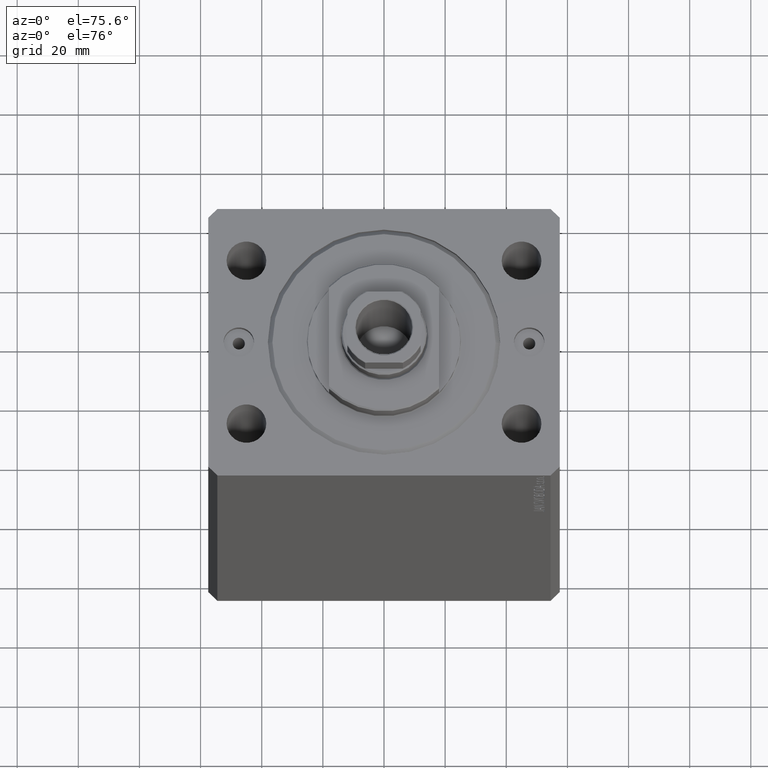
[diagram: clean part render]
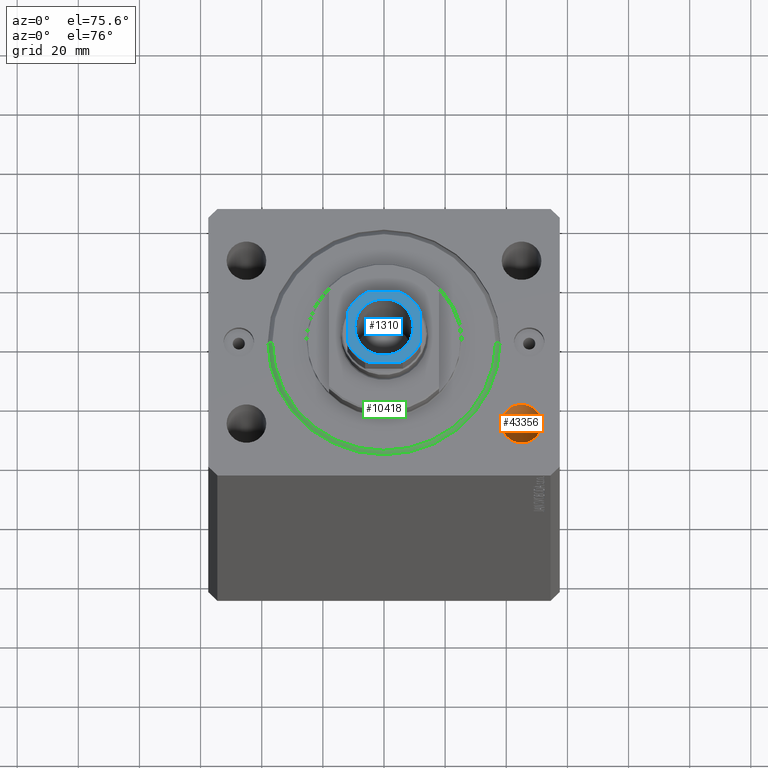
[diagram: same view with three faces highlighted in distinct colors, each labeled with its STEP entity id]
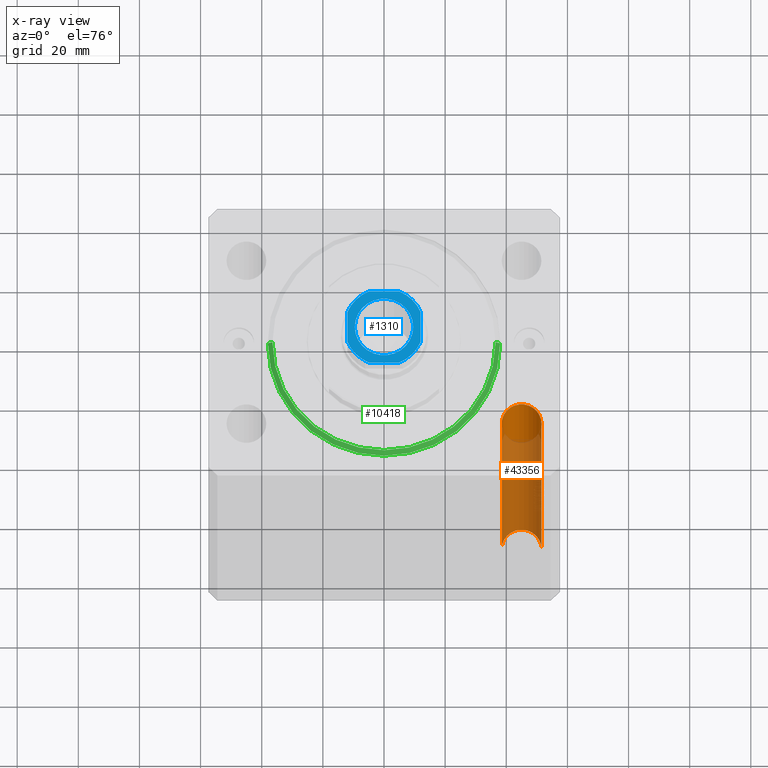
[diagram: x-ray of the same camera — body ghosted, the three highlighted faces saturated]
A machine part, auxiliary view with three faces highlighted in distinct colors.
The next image is the same camera in x-ray (body ghosted, the three faces saturated) — at least one of them is partly hidden behind the body in this view.
Their STEP definitions:

[orange] entity #43356 — the highlighted cylindrical surface (edge-blend (fillet) strip) has radius 6.5 mm, axis along (0, 0, 1).
#862 = DIRECTION ( 'NONE',  ( 0.000000000000000000, 0.000000000000000000, 1.000000000000000000 ) ) ;
#2101 = CIRCLE ( 'NONE', #24185, 6.499999999999999112 ) ;
#3193 = CARTESIAN_POINT ( 'NONE',  ( 51.49999999999998579, -27.50000000000000355, -165.0000000000000000 ) ) ;
#5666 = VECTOR ( 'NONE', #37094, 1000.000000000000000 ) ;
#6110 = DIRECTION ( 'NONE',  ( -0.000000000000000000, -0.000000000000000000, 1.000000000000000000 ) ) ;
#7780 = CARTESIAN_POINT ( 'NONE',  ( 44.99999999999998579, -27.50000000000000355, 0.000000000000000000 ) ) ;
#10852 = CARTESIAN_POINT ( 'NONE',  ( 44.99999999999998579, -27.50000000000000355, -183.3847763108502420 ) ) ;
#10876 = ORIENTED_EDGE ( 'NONE', *, *, #30986, .F. ) ;
#13841 = CARTESIAN_POINT ( 'NONE',  ( 38.49999999999998579, -27.50000000000000355, 0.000000000000000000 ) ) ;
#16469 = VERTEX_POINT ( 'NONE', #41620 ) ;
#17053 = CYLINDRICAL_SURFACE ( 'NONE', #46837, 6.499999999999999112 ) ;
#19086 = EDGE_CURVE ( 'NONE', #16469, #31495, #2101, .T. ) ;
#21027 = LINE ( 'NONE', #39665, #27450 ) ;
#21050 = DIRECTION ( 'NONE',  ( -0.000000000000000000, -0.000000000000000000, -1.000000000000000000 ) ) ;
#21497 = DIRECTION ( 'NONE',  ( -0.000000000000000000, -0.000000000000000000, 1.000000000000000000 ) ) ;
#22511 = CARTESIAN_POINT ( 'NONE',  ( 51.49999999999998579, -27.50000000000000355, -183.3847763108502420 ) ) ;
#23113 = ORIENTED_EDGE ( 'NONE', *, *, #19086, .T. ) ;
#23167 = EDGE_CURVE ( 'NONE', #43758, #36558, #28644, .T. ) ;
#24185 = AXIS2_PLACEMENT_3D ( 'NONE', #7780, #862, #30194 ) ;
#24688 = DIRECTION ( 'NONE',  ( 1.000000000000000000, 0.000000000000000000, 0.000000000000000000 ) ) ;
#26412 = ORIENTED_EDGE ( 'NONE', *, *, #23167, .T. ) ;
#27112 = AXIS2_PLACEMENT_3D ( 'NONE', #28916, #21050, #39691 ) ;
#27450 = VECTOR ( 'NONE', #21497, 1000.000000000000000 ) ;
#28260 = EDGE_LOOP ( 'NONE', ( #10876, #26412, #38954, #23113 ) ) ;
#28644 = CIRCLE ( 'NONE', #27112, 6.499999999999999112 ) ;
#28916 = CARTESIAN_POINT ( 'NONE',  ( 44.99999999999998579, -27.50000000000000355, -165.0000000000000000 ) ) ;
#30194 = DIRECTION ( 'NONE',  ( 1.000000000000000000, 0.000000000000000000, 0.000000000000000000 ) ) ;
#30986 = EDGE_CURVE ( 'NONE', #43758, #31495, #21027, .T. ) ;
#31495 = VERTEX_POINT ( 'NONE', #13841 ) ;
#33263 = LINE ( 'NONE', #22511, #5666 ) ;
#36558 = VERTEX_POINT ( 'NONE', #3193 ) ;
#37094 = DIRECTION ( 'NONE',  ( -0.000000000000000000, -0.000000000000000000, 1.000000000000000000 ) ) ;
#37278 = CARTESIAN_POINT ( 'NONE',  ( 38.49999999999998579, -27.50000000000000355, -165.0000000000000000 ) ) ;
#38954 = ORIENTED_EDGE ( 'NONE', *, *, #43532, .T. ) ;
#39665 = CARTESIAN_POINT ( 'NONE',  ( 38.49999999999998579, -27.50000000000000355, -183.3847763108502420 ) ) ;
#39691 = DIRECTION ( 'NONE',  ( 1.000000000000000000, 0.000000000000000000, 0.000000000000000000 ) ) ;
#41620 = CARTESIAN_POINT ( 'NONE',  ( 51.49999999999998579, -27.50000000000000355, 0.000000000000000000 ) ) ;
#43356 = ADVANCED_FACE ( 'NONE', ( #47153 ), #17053, .F. ) ;
#43532 = EDGE_CURVE ( 'NONE', #36558, #16469, #33263, .T. ) ;
#43758 = VERTEX_POINT ( 'NONE', #37278 ) ;
#46837 = AXIS2_PLACEMENT_3D ( 'NONE', #10852, #6110, #24688 ) ;
#47153 = FACE_OUTER_BOUND ( 'NONE', #28260, .T. ) ;

[blue] entity #1310 — the highlighted planar face has unit normal (0, 0, 1).
#47 = CIRCLE ( 'NONE', #1591, 13.00000000000000000 ) ;
#117 = VERTEX_POINT ( 'NONE', #43433 ) ;
#163 = CARTESIAN_POINT ( 'NONE',  ( 0.000000000000000000, 0.000000000000000000, 167.1000000000000227 ) ) ;
#474 = DIRECTION ( 'NONE',  ( -0.000000000000000000, 0.000000000000000000, 1.000000000000000000 ) ) ;
#823 = CARTESIAN_POINT ( 'NONE',  ( 5.000000000000002665, 12.00000000000000000, 167.1000000000000227 ) ) ;
#904 = AXIS2_PLACEMENT_3D ( 'NONE', #28042, #13249, #6352 ) ;
#1310 = ADVANCED_FACE ( 'NONE', ( #28078, #35968 ), #43144, .T. ) ;
#1591 = AXIS2_PLACEMENT_3D ( 'NONE', #15506, #29832, #18614 ) ;
#2915 = DIRECTION ( 'NONE',  ( -1.000000000000000000, -7.228014483236695816E-17, -0.000000000000000000 ) ) ;
#3049 = EDGE_CURVE ( 'NONE', #26138, #30189, #45117, .T. ) ;
#3756 = DIRECTION ( 'NONE',  ( -1.445602896647339163E-16, 1.000000000000000000, -0.000000000000000000 ) ) ;
#3889 = EDGE_LOOP ( 'NONE', ( #40021, #11888 ) ) ;
#4938 = LINE ( 'NONE', #16337, #42095 ) ;
#5797 = CARTESIAN_POINT ( 'NONE',  ( 0.000000000000000000, 0.000000000000000000, 167.1000000000000227 ) ) ;
#6025 = VERTEX_POINT ( 'NONE', #32881 ) ;
#6352 = DIRECTION ( 'NONE',  ( 1.000000000000000000, 0.000000000000000000, 0.000000000000000000 ) ) ;
#6434 = VECTOR ( 'NONE', #2915, 1000.000000000000000 ) ;
#7625 = VERTEX_POINT ( 'NONE', #823 ) ;
#8530 = CIRCLE ( 'NONE', #904, 13.00000000000000000 ) ;
#8546 = CARTESIAN_POINT ( 'NONE',  ( -5.000000000000001776, 11.99999999999999822, 167.1000000000000227 ) ) ;
#9437 = CARTESIAN_POINT ( 'NONE',  ( 9.550000000000002487, 0.000000000000000000, 167.1000000000000227 ) ) ;
#9601 = DIRECTION ( 'NONE',  ( 1.000000000000000000, 0.000000000000000000, 0.000000000000000000 ) ) ;
#10193 = DIRECTION ( 'NONE',  ( 1.000000000000000000, 0.000000000000000000, 0.000000000000000000 ) ) ;
#11120 = CARTESIAN_POINT ( 'NONE',  ( 12.00000000000000178, -4.999999999999990230, 167.1000000000000227 ) ) ;
#11888 = ORIENTED_EDGE ( 'NONE', *, *, #17661, .T. ) ;
#11975 = CIRCLE ( 'NONE', #36333, 9.550000000000002487 ) ;
#12385 = DIRECTION ( 'NONE',  ( 7.228014483236695816E-17, -1.000000000000000000, 0.000000000000000000 ) ) ;
#12734 = ORIENTED_EDGE ( 'NONE', *, *, #3049, .T. ) ;
#13249 = DIRECTION ( 'NONE',  ( -0.000000000000000000, 0.000000000000000000, 1.000000000000000000 ) ) ;
#13395 = ORIENTED_EDGE ( 'NONE', *, *, #45928, .T. ) ;
#14396 = EDGE_CURVE ( 'NONE', #40337, #26138, #22368, .T. ) ;
#14585 = ORIENTED_EDGE ( 'NONE', *, *, #31076, .T. ) ;
#14935 = LINE ( 'NONE', #33085, #27029 ) ;
#15458 = EDGE_CURVE ( 'NONE', #7625, #40337, #21029, .T. ) ;
#15506 = CARTESIAN_POINT ( 'NONE',  ( 0.000000000000000000, 0.000000000000000000, 167.1000000000000227 ) ) ;
#16337 = CARTESIAN_POINT ( 'NONE',  ( -11.99999999999999645, -12.00000000000000178, 167.1000000000000227 ) ) ;
#17009 = VERTEX_POINT ( 'NONE', #9437 ) ;
#17077 = CARTESIAN_POINT ( 'NONE',  ( 4.999999999999993783, -12.00000000000000178, 167.1000000000000227 ) ) ;
#17661 = EDGE_CURVE ( 'NONE', #117, #17009, #11975, .T. ) ;
#18016 = VERTEX_POINT ( 'NONE', #11120 ) ;
#18614 = DIRECTION ( 'NONE',  ( 1.000000000000000000, 0.000000000000000000, 0.000000000000000000 ) ) ;
#19818 = ORIENTED_EDGE ( 'NONE', *, *, #14396, .T. ) ;
#19946 = ORIENTED_EDGE ( 'NONE', *, *, #15458, .T. ) ;
#20838 = EDGE_CURVE ( 'NONE', #17009, #117, #36196, .T. ) ;
#21029 = LINE ( 'NONE', #35610, #6434 ) ;
#21857 = DIRECTION ( 'NONE',  ( 0.000000000000000000, -0.000000000000000000, -1.000000000000000000 ) ) ;
#22368 = CIRCLE ( 'NONE', #46788, 13.00000000000000000 ) ;
#22639 = CARTESIAN_POINT ( 'NONE',  ( 0.000000000000000000, 0.000000000000000000, 167.1000000000000227 ) ) ;
#23092 = AXIS2_PLACEMENT_3D ( 'NONE', #5797, #24843, #9601 ) ;
#23584 = ORIENTED_EDGE ( 'NONE', *, *, #34113, .T. ) ;
#23874 = VERTEX_POINT ( 'NONE', #31690 ) ;
#24107 = DIRECTION ( 'NONE',  ( 1.000000000000000000, 0.000000000000000000, 0.000000000000000000 ) ) ;
#24843 = DIRECTION ( 'NONE',  ( -0.000000000000000000, 0.000000000000000000, 1.000000000000000000 ) ) ;
#25761 = AXIS2_PLACEMENT_3D ( 'NONE', #47204, #39326, #10193 ) ;
#26138 = VERTEX_POINT ( 'NONE', #39017 ) ;
#27029 = VECTOR ( 'NONE', #3756, 1000.000000000000000 ) ;
#28042 = CARTESIAN_POINT ( 'NONE',  ( 0.000000000000000000, 0.000000000000000000, 167.1000000000000227 ) ) ;
#28078 = FACE_BOUND ( 'NONE', #3889, .T. ) ;
#29832 = DIRECTION ( 'NONE',  ( -0.000000000000000000, 0.000000000000000000, 1.000000000000000000 ) ) ;
#30189 = VERTEX_POINT ( 'NONE', #31169 ) ;
#31076 = EDGE_CURVE ( 'NONE', #30189, #23874, #47, .T. ) ;
#31169 = CARTESIAN_POINT ( 'NONE',  ( -11.99999999999999822, -5.000000000000001776, 167.1000000000000227 ) ) ;
#31618 = AXIS2_PLACEMENT_3D ( 'NONE', #163, #21857, #36436 ) ;
#31690 = CARTESIAN_POINT ( 'NONE',  ( -4.999999999999992895, -12.00000000000000178, 167.1000000000000227 ) ) ;
#32084 = VERTEX_POINT ( 'NONE', #17077 ) ;
#32206 = DIRECTION ( 'NONE',  ( 0.000000000000000000, -0.000000000000000000, -1.000000000000000000 ) ) ;
#32810 = ORIENTED_EDGE ( 'NONE', *, *, #40879, .T. ) ;
#32881 = CARTESIAN_POINT ( 'NONE',  ( 12.00000000000000178, 4.999999999999994671, 167.1000000000000227 ) ) ;
#33085 = CARTESIAN_POINT ( 'NONE',  ( 12.00000000000000000, 12.00000000000000000, 167.1000000000000227 ) ) ;
#33488 = VECTOR ( 'NONE', #12385, 1000.000000000000000 ) ;
#34113 = EDGE_CURVE ( 'NONE', #32084, #18016, #8530, .T. ) ;
#34385 = CARTESIAN_POINT ( 'NONE',  ( 0.000000000000000000, 0.000000000000000000, 167.1000000000000227 ) ) ;
#35610 = CARTESIAN_POINT ( 'NONE',  ( -11.99999999999999822, 11.99999999999999822, 167.1000000000000227 ) ) ;
#35894 = EDGE_LOOP ( 'NONE', ( #12734, #14585, #43270, #23584, #13395, #32810, #19946, #19818 ) ) ;
#35968 = FACE_OUTER_BOUND ( 'NONE', #35894, .T. ) ;
#36196 = CIRCLE ( 'NONE', #31618, 9.550000000000002487 ) ;
#36333 = AXIS2_PLACEMENT_3D ( 'NONE', #34385, #32206, #24107 ) ;
#36436 = DIRECTION ( 'NONE',  ( 1.000000000000000000, 0.000000000000000000, 0.000000000000000000 ) ) ;
#36506 = DIRECTION ( 'NONE',  ( 1.000000000000000000, 0.000000000000000000, 0.000000000000000000 ) ) ;
#38302 = CIRCLE ( 'NONE', #23092, 13.00000000000000000 ) ;
#39017 = CARTESIAN_POINT ( 'NONE',  ( -11.99999999999999822, 5.000000000000000888, 167.1000000000000227 ) ) ;
#39037 = EDGE_CURVE ( 'NONE', #23874, #32084, #4938, .T. ) ;
#39326 = DIRECTION ( 'NONE',  ( -0.000000000000000000, 0.000000000000000000, 1.000000000000000000 ) ) ;
#40021 = ORIENTED_EDGE ( 'NONE', *, *, #20838, .T. ) ;
#40337 = VERTEX_POINT ( 'NONE', #8546 ) ;
#40879 = EDGE_CURVE ( 'NONE', #6025, #7625, #38302, .T. ) ;
#41997 = CARTESIAN_POINT ( 'NONE',  ( -11.99999999999999822, 11.99999999999999822, 167.1000000000000227 ) ) ;
#42095 = VECTOR ( 'NONE', #45265, 1000.000000000000000 ) ;
#43144 = PLANE ( 'NONE',  #25761 ) ;
#43270 = ORIENTED_EDGE ( 'NONE', *, *, #39037, .T. ) ;
#43433 = CARTESIAN_POINT ( 'NONE',  ( -9.550000000000002487, 1.169537693185722755E-15, 167.1000000000000227 ) ) ;
#45117 = LINE ( 'NONE', #41997, #33488 ) ;
#45265 = DIRECTION ( 'NONE',  ( 1.000000000000000000, 7.228014483236695816E-17, 0.000000000000000000 ) ) ;
#45928 = EDGE_CURVE ( 'NONE', #18016, #6025, #14935, .T. ) ;
#46788 = AXIS2_PLACEMENT_3D ( 'NONE', #22639, #474, #36506 ) ;
#47204 = CARTESIAN_POINT ( 'NONE',  ( 0.000000000000000000, 0.000000000000000000, 167.1000000000000227 ) ) ;

[green] entity #10418 — the highlighted conical surface has half-angle 45 deg.
#1466 = LINE ( 'NONE', #45851, #35748 ) ;
#4375 = LINE ( 'NONE', #14367, #45667 ) ;
#4519 = CIRCLE ( 'NONE', #21236, 38.00000000000000000 ) ;
#5301 = FACE_OUTER_BOUND ( 'NONE', #39806, .T. ) ;
#5476 = EDGE_CURVE ( 'NONE', #45086, #47070, #4375, .T. ) ;
#7895 = CIRCLE ( 'NONE', #27663, 36.50000000000000000 ) ;
#10418 = ADVANCED_FACE ( 'NONE', ( #5301 ), #43960, .T. ) ;
#11991 = DIRECTION ( 'NONE',  ( -0.000000000000000000, -0.000000000000000000, 1.000000000000000000 ) ) ;
#13567 = EDGE_CURVE ( 'NONE', #45086, #32574, #7895, .T. ) ;
#14367 = CARTESIAN_POINT ( 'NONE',  ( 38.00000000000000000, 0.000000000000000000, 1.499999999999994449 ) ) ;
#14520 = CARTESIAN_POINT ( 'NONE',  ( 0.000000000000000000, 0.000000000000000000, 0.000000000000000000 ) ) ;
#18573 = DIRECTION ( 'NONE',  ( -0.000000000000000000, -0.000000000000000000, -1.000000000000000000 ) ) ;
#19451 = EDGE_CURVE ( 'NONE', #38230, #47070, #4519, .T. ) ;
#20628 = EDGE_CURVE ( 'NONE', #32574, #38230, #1466, .T. ) ;
#21236 = AXIS2_PLACEMENT_3D ( 'NONE', #31063, #45665, #27251 ) ;
#22482 = CARTESIAN_POINT ( 'NONE',  ( -36.50000000000000000, 4.561809326823889791E-15, 0.000000000000000000 ) ) ;
#22953 = DIRECTION ( 'NONE',  ( 1.000000000000000000, 0.000000000000000000, 0.000000000000000000 ) ) ;
#23435 = CARTESIAN_POINT ( 'NONE',  ( -38.00000000000000000, 0.000000000000000000, 1.499999999999994449 ) ) ;
#24095 = DIRECTION ( 'NONE',  ( -0.7071067811865491270, 8.659560562354953812E-17, 0.7071067811865459074 ) ) ;
#27251 = DIRECTION ( 'NONE',  ( 1.000000000000000000, 0.000000000000000000, 0.000000000000000000 ) ) ;
#27380 = ORIENTED_EDGE ( 'NONE', *, *, #13567, .F. ) ;
#27663 = AXIS2_PLACEMENT_3D ( 'NONE', #14520, #18573, #33142 ) ;
#27906 = AXIS2_PLACEMENT_3D ( 'NONE', #30575, #11991, #22953 ) ;
#30575 = CARTESIAN_POINT ( 'NONE',  ( 0.000000000000000000, 0.000000000000000000, 1.499999999999994449 ) ) ;
#31063 = CARTESIAN_POINT ( 'NONE',  ( 0.000000000000000000, 0.000000000000000000, 1.499999999999994449 ) ) ;
#31371 = ORIENTED_EDGE ( 'NONE', *, *, #5476, .T. ) ;
#31619 = CARTESIAN_POINT ( 'NONE',  ( 38.00000000000000000, 4.653657836759941941E-15, 1.499999999999994449 ) ) ;
#32574 = VERTEX_POINT ( 'NONE', #22482 ) ;
#33142 = DIRECTION ( 'NONE',  ( 1.000000000000000000, 0.000000000000000000, 0.000000000000000000 ) ) ;
#33561 = CARTESIAN_POINT ( 'NONE',  ( 36.50000000000000000, 0.000000000000000000, 0.000000000000000000 ) ) ;
#35748 = VECTOR ( 'NONE', #24095, 1000.000000000000114 ) ;
#38230 = VERTEX_POINT ( 'NONE', #23435 ) ;
#39706 = DIRECTION ( 'NONE',  ( 0.7071067811865491270, 0.000000000000000000, 0.7071067811865459074 ) ) ;
#39806 = EDGE_LOOP ( 'NONE', ( #40102, #27380, #31371, #45002 ) ) ;
#40102 = ORIENTED_EDGE ( 'NONE', *, *, #20628, .F. ) ;
#43960 = CONICAL_SURFACE ( 'NONE', #27906, 38.00000000000000000, 0.7853981633974506105 ) ;
#45002 = ORIENTED_EDGE ( 'NONE', *, *, #19451, .F. ) ;
#45086 = VERTEX_POINT ( 'NONE', #33561 ) ;
#45665 = DIRECTION ( 'NONE',  ( -0.000000000000000000, -0.000000000000000000, 1.000000000000000000 ) ) ;
#45667 = VECTOR ( 'NONE', #39706, 1000.000000000000114 ) ;
#45851 = CARTESIAN_POINT ( 'NONE',  ( -38.00000000000000000, 4.653657836759941941E-15, 1.499999999999994449 ) ) ;
#47070 = VERTEX_POINT ( 'NONE', #31619 ) ;